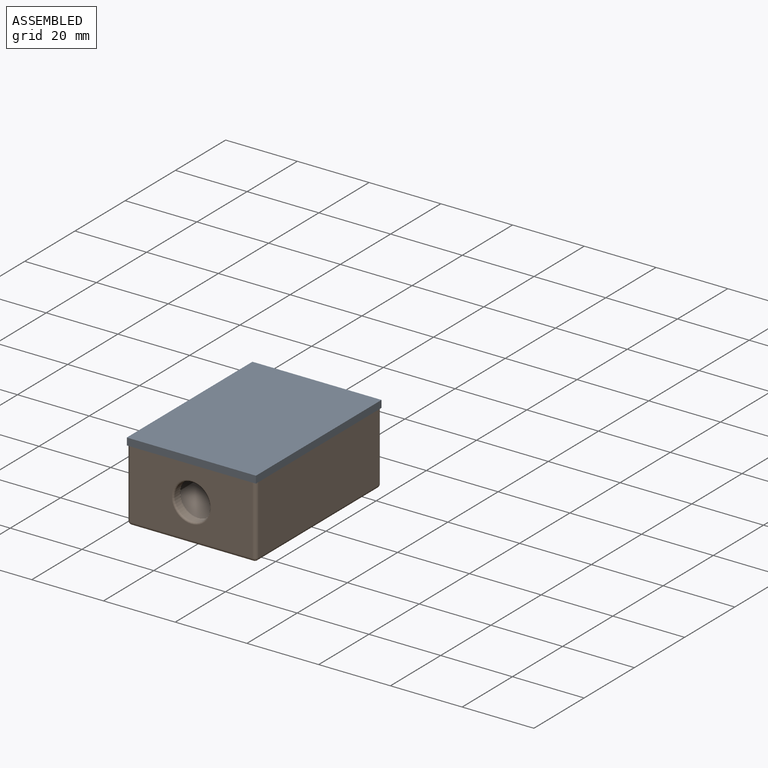
[diagram: assembled view]
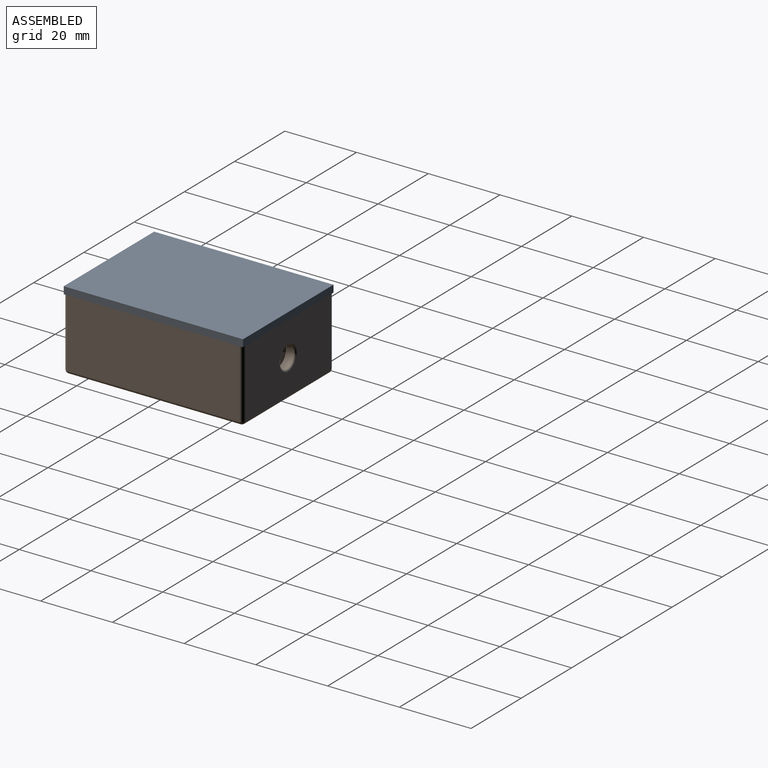
[diagram: assembled view, second angle]
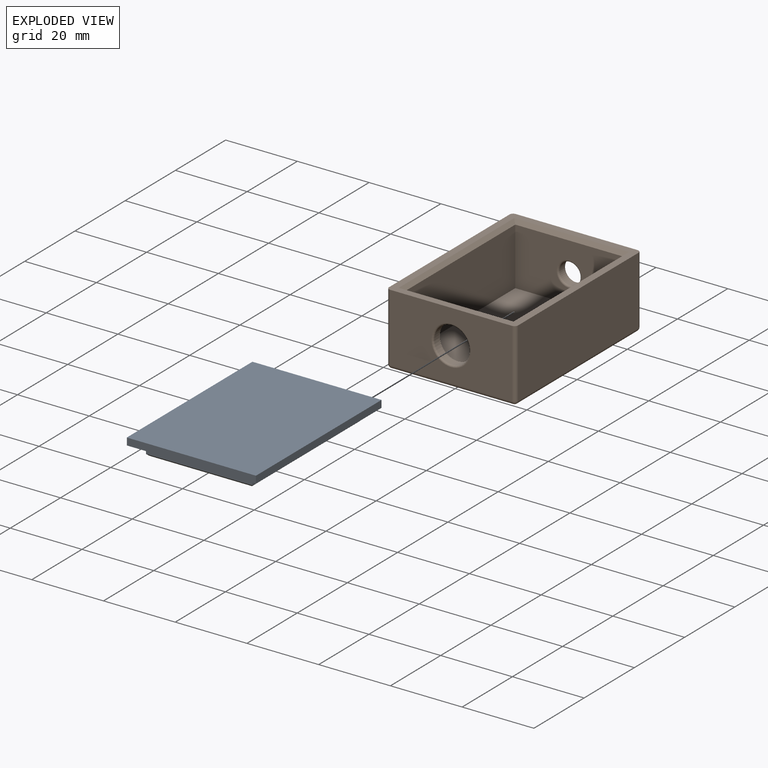
[diagram: exploded view]
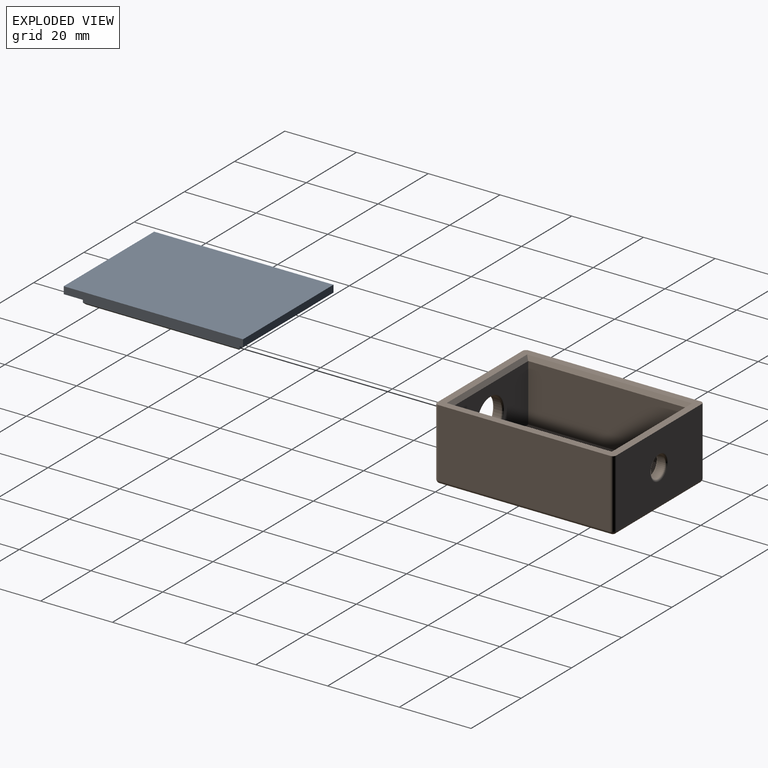
[diagram: exploded view, second angle]
ASSEMBLY  parts=2 mates=3
PART A: 15 faces, bbox 36x50x5 mm
  f0: plane 50x36mm, normal (0,0,1), area 502.1mm2, adj f1,f2,f3,f4,f6,f7,f8,f9
  f1: plane 36x2mm, normal (0,1,0), area 72mm2, adj f0,f2,f4,f5
  f2: plane 50x2mm, normal (-1,0,0), area 100mm2, adj f0,f1,f3,f5
  f3: plane 36x2mm, normal (0,-1,0), area 72mm2, adj f0,f2,f4,f5
  f4: plane 50x2mm, normal (1,0,0), area 100mm2, adj f0,f1,f3,f5
  f5: plane 50x36mm, normal (0,0,-1), area 1800mm2, adj f1,f2,f3,f4
  f6: plane 29.7x2.5mm, normal (0,1,0), area 74.2mm2, adj f0,f7,f9,f14
  f7: plane 43.7x2.5mm, normal (-1,0,0), area 109.2mm2, adj f0,f6,f8,f12
  f8: plane 29.7x2.5mm, normal (0,-1,0), area 74.2mm2, adj f0,f7,f9,f11
  f9: plane 43.7x2.5mm, normal (1,0,0), area 109.2mm2, adj f0,f6,f8,f13
  f10: plane 42.7x28.7mm, normal (0,0,1), area 1225.5mm2, adj f11,f12,f13,f14
  f11: plane 29.7x0.5mm, normal (0,-0.71,0.71), area 20.6mm2, adj f8,f10,f12,f13
  f12: plane 43.7x0.5mm, normal (-0.71,0,0.71), area 30.5mm2, adj f7,f10,f11,f14
  f13: plane 43.7x0.5mm, normal (0.71,0,0.71), area 30.5mm2, adj f9,f10,f11,f14
  f14: plane 29.7x0.5mm, normal (0,0.71,0.71), area 20.6mm2, adj f6,f10,f12,f13
PART B: 33 faces, bbox 36x50x20 mm
  f0: plane 50x36mm, normal (0,0,1), area 327.1mm2, adj f1,f2,f3,f4,f11,f12,f13,f14
  f1: plane 48x19mm, normal (1,0,0), area 912mm2, adj f0,f20,f24,f26
  f2: plane 34x19mm, normal (0,1,0), area 607.5mm2, adj f0,f17,f23,f26,f29
  f3: plane 48x19mm, normal (-1,0,0), area 912mm2, adj f0,f15,f17,f18
  f4: plane 34x19mm, normal (0,-1,0), area 551mm2, adj f0,f15,f19,f20,f31
  f5: plane 48x34mm, normal (0,0,-1), area 1632mm2, adj f18,f19,f23,f24
  f6: plane 44x16mm, normal (-1,0,0), area 704mm2, adj f7,f9,f10,f13
  f7: plane 30x16mm, normal (0,-1,0), area 441.5mm2, adj f6,f8,f10,f11,f30
  f8: plane 44x16mm, normal (1,0,0), area 704mm2, adj f7,f9,f10,f12
  f9: plane 30x16mm, normal (0,1,0), area 385mm2, adj f6,f8,f10,f14,f32
  f10: plane 44x30mm, normal (0,0,1), area 1320mm2, adj f6,f7,f8,f9
  f11: plane 32x1mm, normal (0,-0.71,0.71), area 43.8mm2, adj f0,f7,f12,f13
  f12: plane 46x1mm, normal (0.71,0,0.71), area 63.6mm2, adj f0,f8,f11,f14
  f13: plane 46x1mm, normal (-0.71,0,0.71), area 63.6mm2, adj f0,f6,f11,f14
  f14: plane 32x1mm, normal (0,0.71,0.71), area 43.8mm2, adj f0,f9,f12,f13
  f15: cylinder r=1mm len=19mm, axis (0,0,-1), area 29.8mm2, adj f0,f3,f4,f16
  f16: sphere r=1mm, area 1.6mm2, adj f15,f18,f19
  f17: cylinder r=1mm len=19mm, axis (0,0,1), area 29.8mm2, adj f0,f2,f3,f21
  f18: cylinder r=1mm len=48mm, axis (0,-1,0), area 75.4mm2, adj f3,f5,f16,f21
  f19: cylinder r=1mm len=34mm, axis (1,0,0), area 53.4mm2, adj f4,f5,f16,f22
  f20: cylinder r=1mm len=19mm, axis (0,0,1), area 29.8mm2, adj f0,f1,f4,f22
  f21: sphere r=1mm, area 1.6mm2, adj f17,f18,f23
  f22: sphere r=1mm, area 1.6mm2, adj f19,f20,f24
  f23: cylinder r=1mm len=34mm, axis (-1,0,0), area 53.4mm2, adj f2,f5,f21,f25
  f24: cylinder r=1mm len=48mm, axis (0,1,0), area 75.4mm2, adj f1,f5,f22,f25
  f25: sphere r=1mm, area 1.6mm2, adj f23,f24,f26
  f26: cylinder r=1mm len=19mm, axis (0,0,-1), area 29.8mm2, adj f0,f1,f2,f25
  f27: cylinder r=5mm len=10mm, axis (0,-1,0), area 62.8mm2, adj f31,f32
  f28: cylinder r=3mm len=6mm, axis (0,1,0), area 37.7mm2, adj f29,f30
  f29: torus R=3.5mm, axis (0,1,0), area 15.7mm2, adj f2,f28
  f30: torus R=3.5mm, axis (0,1,0), area 15.7mm2, adj f7,f28
  f31: torus R=5.5mm, axis (0,1,0), area 25.6mm2, adj f4,f27
  f32: torus R=5.5mm, axis (0,1,0), area 25.6mm2, adj f9,f27
PLACE A rot(axis=(1,0,0),180deg) t=(0,0,26.4)mm
PLACE B t=(0,0,4.4)mm fixed
MATE planar A.f1 <-> B.f27  axis (0,-1,0) through (0,-25,25.4)mm
MATE planar A.f4 <-> B.f1  axis (1,0,0) through (18,0,25.4)mm
MATE planar A.f0 <-> B.f0  axis (0,0,-1) through (0,0,24.4)mm
